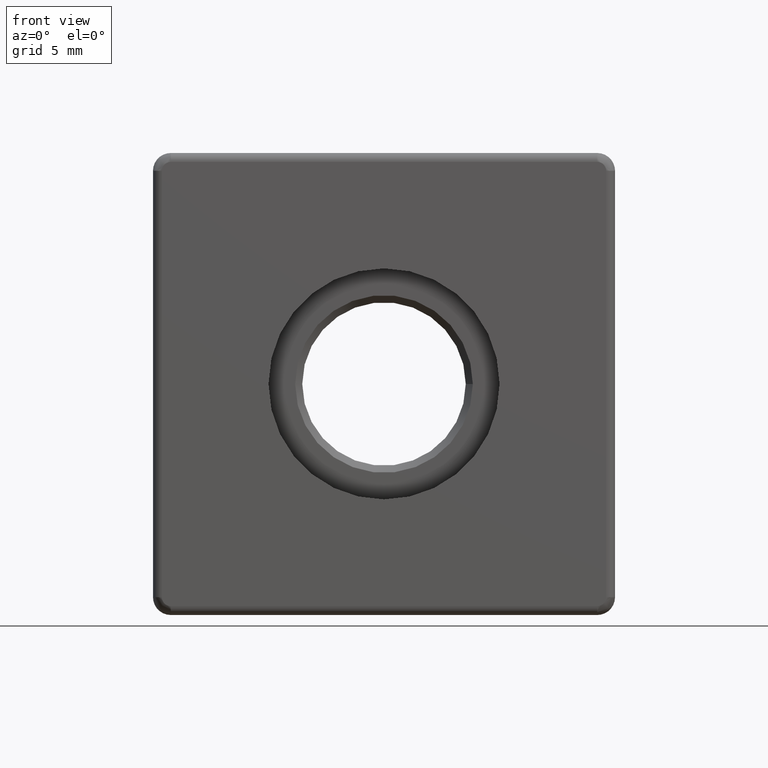
[diagram: clean part render]
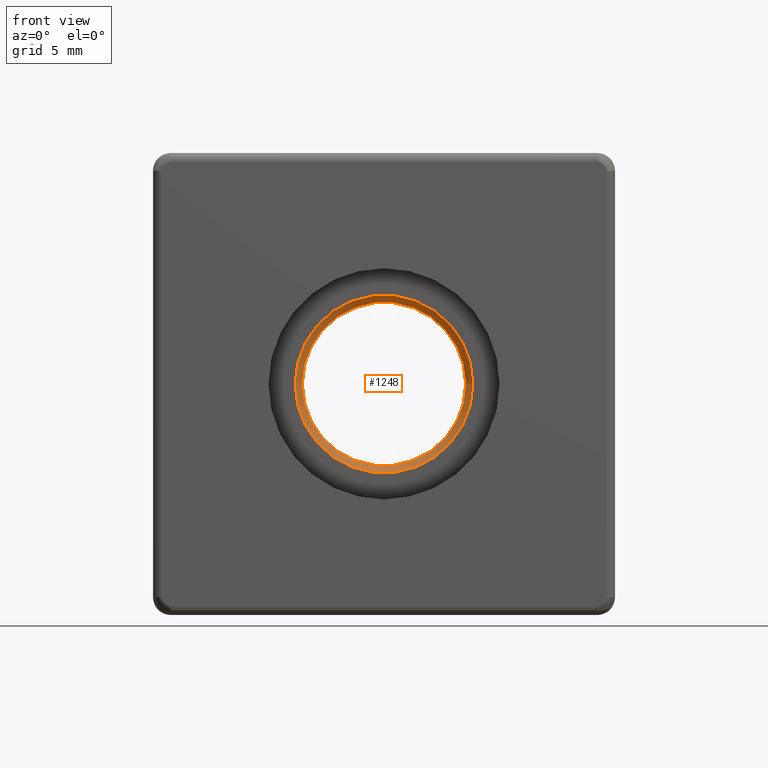
[diagram: same view with one face highlighted and labeled with its STEP entity id]
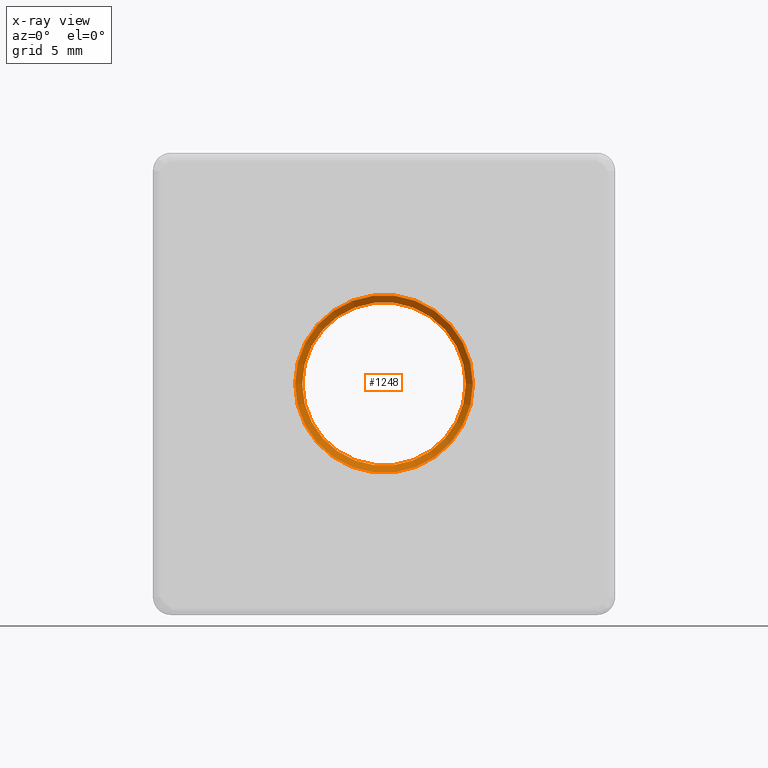
[diagram: x-ray of the same camera — body ghosted, the highlighted face saturated]
A machine part, front view. The second image highlights one B-rep face of the part: STEP entity #1248.
The next image is the same camera in x-ray: the body ghosted, the highlighted face saturated — about 0% of this face is hidden behind the body in this view.
In plain terms, the highlighted conical surface has half-angle 45 deg.
Its self-contained STEP definition (entity closure, byte-faithful):
#15=CONICAL_SURFACE('',#1381,4.8,45.);
#18=FACE_BOUND('',#396,.T.);
#319=FACE_OUTER_BOUND('',#395,.T.);
#395=EDGE_LOOP('',(#1079));
#396=EDGE_LOOP('',(#1080));
#490=CIRCLE('',#1382,5.);
#491=CIRCLE('',#1383,4.6);
#622=VERTEX_POINT('',#2313);
#623=VERTEX_POINT('',#2315);
#791=EDGE_CURVE('',#622,#622,#490,.T.);
#792=EDGE_CURVE('',#623,#623,#491,.T.);
#1079=ORIENTED_EDGE('',*,*,#791,.F.);
#1080=ORIENTED_EDGE('',*,*,#792,.F.);
#1248=ADVANCED_FACE('',(#319,#18),#15,.F.);
#1381=AXIS2_PLACEMENT_3D('',#2312,#1708,#1709);
#1382=AXIS2_PLACEMENT_3D('',#2314,#1710,#1711);
#1383=AXIS2_PLACEMENT_3D('',#2316,#1712,#1713);
#1708=DIRECTION('center_axis',(0.,-1.,0.));
#1709=DIRECTION('ref_axis',(1.,0.,0.));
#1710=DIRECTION('center_axis',(0.,1.,0.));
#1711=DIRECTION('ref_axis',(1.,0.,0.));
#1712=DIRECTION('center_axis',(0.,-1.,0.));
#1713=DIRECTION('ref_axis',(1.,0.,0.));
#2312=CARTESIAN_POINT('Origin',(0.,-2.3,0.));
#2313=CARTESIAN_POINT('',(5.,-2.5,0.));
#2314=CARTESIAN_POINT('Origin',(0.,-2.5,0.));
#2315=CARTESIAN_POINT('',(4.6,-2.1,0.));
#2316=CARTESIAN_POINT('Origin',(0.,-2.1,0.));